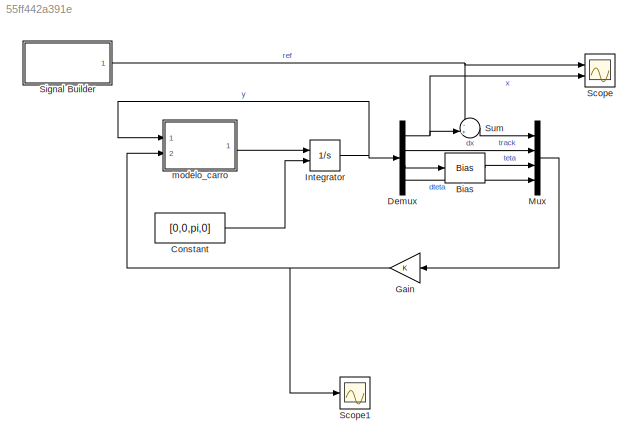
MODEL slx_55ff442a391e
KIND model
CONFIG AbsTol = auto
CONFIG EnableMultiTasking = off
CONFIG FixedStep = 0.001
CONFIG MaxStep = auto
CONFIG MinStep = auto
CONFIG RelTol = 1e-3
CONFIG SampleTimeConstraint = Unconstrained
CONFIG Solver = FixedStepAuto
CONFIG SolverName = FixedStepAuto
CONFIG StartTime = 0.0
CONFIG StopTime = 40
BLOCK [Bias] Bias
  Bias = -pi
  SaturateOnIntegerOverflow = off
BLOCK [Constant] Constant
  Value = [0,0,pi,0]
BLOCK [Demux] Demux
  Ports = [1, 4]
BLOCK [Gain] Gain
  Gain = K
  Multiplication = Matrix(K*u)
BLOCK [Integrator] Integrator
  InitialCondition = [1]
  InitialConditionSource = external
  Ports = [2, 1]
BLOCK [Mux] Mux
  DisplayOption = bar
  Ports = [4, 1]
BLOCK [Scope] Scope
  Floating = off
  NumInputPorts = 2
  Ports = [2]
  ScopeSpecificationString = Simulink.scopes.TimeScopeBlockCfg('CurrentConfiguration', extmgr.ConfigurationSet(extmgr.Configuration('Core','General UI',true),extmgr.Configuration('Core','Source UI',true),extmgr.Configuration('Sources','WiredSimulink',true),extmgr.Configuration('Visuals','Time Domain',true,'SerializedDisplays',{struct('MinYLimReal','-0.46571','MaxYLimReal','3.38508','YLabelReal','','MinYLimMag','0.00000','MaxY...<+1381ch>
BLOCK [Scope] Scope1
  Floating = off
  NumInputPorts = 1
  Ports = [1]
  ScopeSpecificationString = Simulink.scopes.TimeScopeBlockCfg('CurrentConfiguration', extmgr.ConfigurationSet(extmgr.Configuration('Core','General UI',true),extmgr.Configuration('Core','Source UI',true),extmgr.Configuration('Sources','WiredSimulink',true,'DataLoggingVariableName','ScopeData1'),extmgr.Configuration('Visuals','Time Domain',true,'SerializedDisplays',{struct('MinYLimReal','-242.85333','MaxYLimReal','151.41223','...<+1406ch>
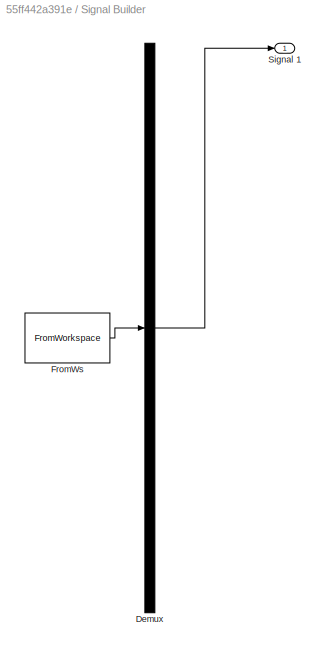
BLOCK [SubSystem] Signal Builder
  ClipboardFcn = sigbuilder_block('clipboard');
  CloseFcn = sigbuilder_block('close');
  ContinueFcn = sigbuilder_block('continue');
  CopyFcn = sigbuilder_block('copy');
  DeleteFcn = sigbuilder_block('delete');
  LoadFcn = sigbuilder_block('load');
  MaskHideContents = on
  ModelCloseFcn = sigbuilder_block('modelClose');
  NameChangeFcn = sigbuilder_block('namechange');
  OpenFcn = sigbuilder_block('open',[233.25 157.5 550.5 399.75 ]);
  PauseFcn = sigbuilder_block('pause');
  Ports = [0, 1]
  PreSaveFcn = sigbuilder_block('preSave');
  RequestExecContextInheritance = off
  StartFcn = sigbuilder_block('start');
  StopFcn = sigbuilder_block('stop');
  Tag = STV Subsys
BLOCK [Demux] Signal Builder/Demux
  DisplayOption = none
  Outputs = 1
  Ports = [1, 1]
  Tag = STV Demux
BLOCK [FromWorkspace] Signal Builder/FromWs
  Tag = STV FromWs
  VariableName = tuvar
BLOCK [Outport] Signal Builder/Signal 1
  Tag = STV Outport
BLOCK [Sum] Sum
  Inputs = -+|
  Ports = [2, 1]
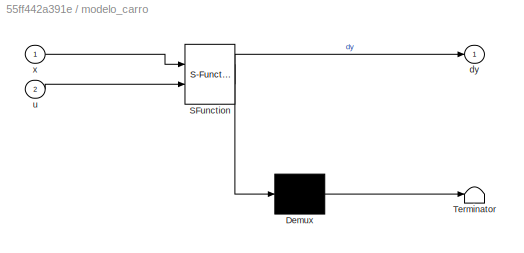
BLOCK [SubSystem] modelo_carro
  ErrorFcn = Stateflow.Translate.translate
  PermitHierarchicalResolution = ExplicitOnly
  Ports = [2, 1]
  RequestExecContextInheritance = off
  SFBlockType = MATLAB Function
  TreatAsAtomicUnit = on
BLOCK [Demux] modelo_carro/ Demux 
  Outputs = 1
  Ports = [1, 1]
BLOCK [S-Function] modelo_carro/ SFunction 
  EnableBusSupport = on
  FunctionName = sf_sfun
  PortCounts = [2 2]
  Ports = [2, 2]
  SFcnIsStateOwnerBlock = off
  SFunctionDeploymentMode = off
  Tag = Stateflow S-Function 2
BLOCK [Terminator] modelo_carro/ Terminator 
BLOCK [Outport] modelo_carro/dy
BLOCK [Inport] modelo_carro/u
  Port = 2
BLOCK [Inport] modelo_carro/x
LINE Bias:1 -> Mux:3
LINE Constant:1 -> Integrator:2
NET Demux:1 -> Scope:2, Sum:2
LINE Demux:2 -> Mux:2
LINE Demux:3 -> Bias:1
LINE Demux:4 -> Mux:4
NET Gain:1 -> Scope1:1, modelo_carro:2
NET Integrator:1 -> Demux:1, modelo_carro:1
LINE Mux:1 -> Gain:1
NET Signal Builder:1 -> Scope:1, Sum:1
LINE Sum:1 -> Mux:1
LINE modelo_carro:1 -> Integrator:1
note: NET lines group one-source signal fan-out (src -> all destinations, sorted); 1:1 wires keep LINE
CHART modelo_carro states=1 transitions=1
  STATE_LABEL 'eML_blk_kernel()'
  STATE_LABEL 'SCRIPT:\nfunction dy = fcn(x,u)\n    m = 1.0;\n    M = 5.0;\n    L = 2.0;\n    g = -10.0;\n    d = 1.0;\n    dy = fn_eq_diferencial(x,m,M,L,g,d,u);\n'
CHART  states=0 transitions=0
